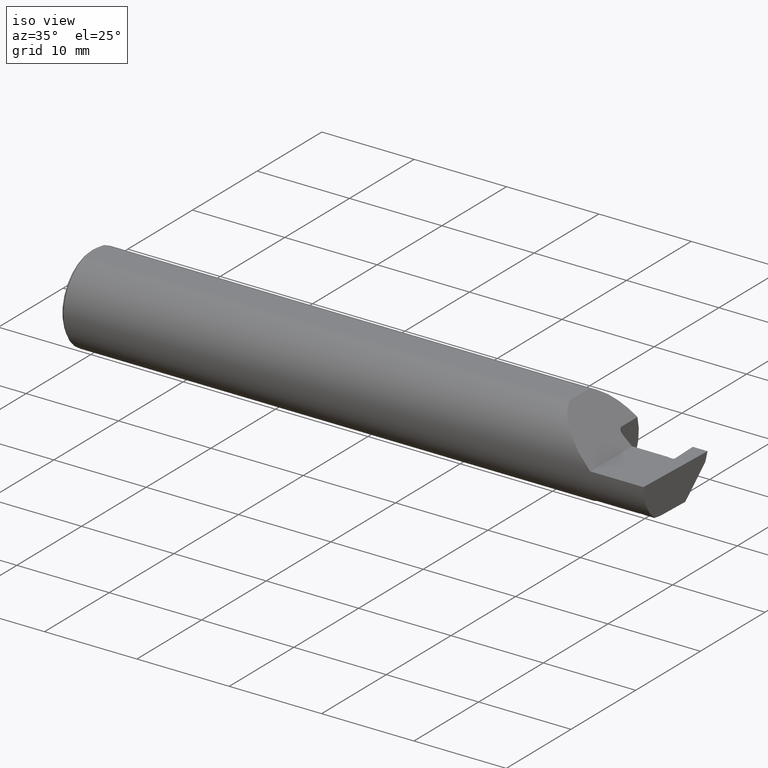
[diagram: clean part render]
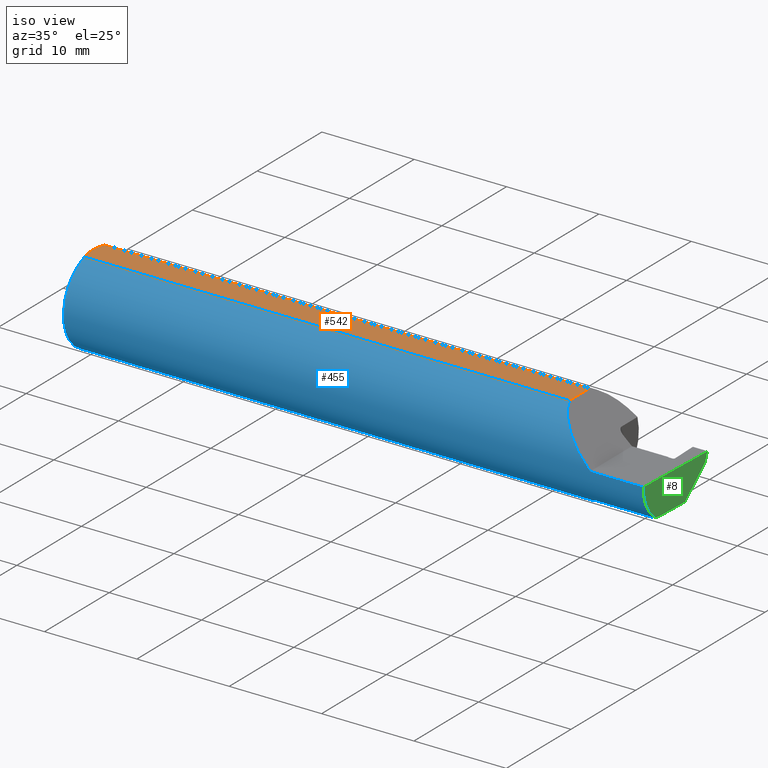
[diagram: same view with three faces highlighted in distinct colors, each labeled with its STEP entity id]
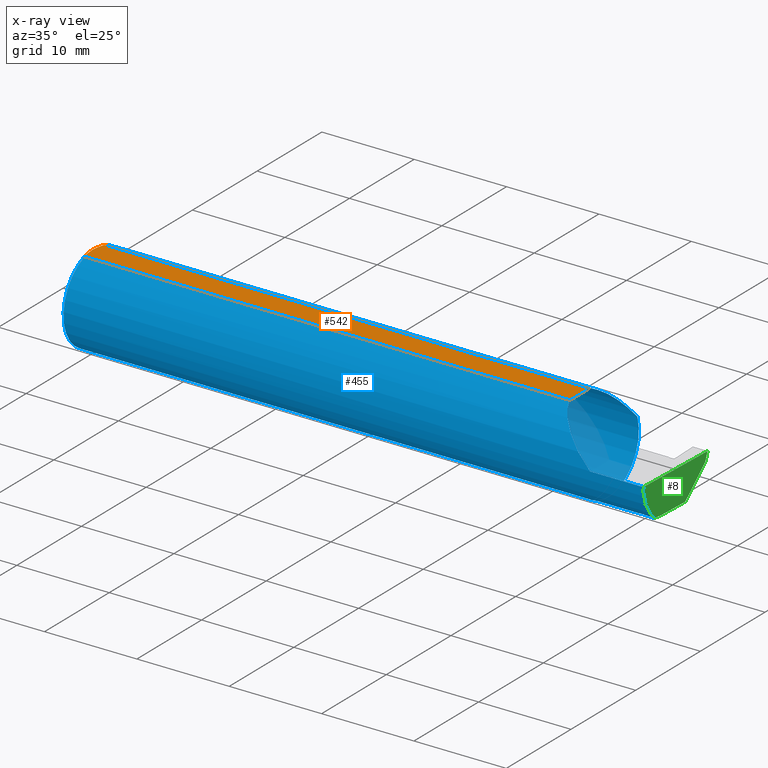
[diagram: x-ray of the same camera — body ghosted, the three highlighted faces saturated]
A machine part, iso view with three faces highlighted in distinct colors.
The next image is the same camera in x-ray (body ghosted, the three faces saturated) — at least one of them is partly hidden behind the body in this view.
Their STEP definitions:

[orange] entity #542 — the highlighted planar face has unit normal (0, -0, 1).
#26 = CARTESIAN_POINT ( 'NONE',  ( 0.004999999999999835305, 2.941982542510190671E-17, 0.1773499999999999799 ) ) ;
#33 = VECTOR ( 'NONE', #346, 39.37007874015748143 ) ;
#48 = B_SPLINE_CURVE_WITH_KNOTS ( 'NONE', 3,
 ( #358, #61, #730, #502, #442, #778 ),
 .UNSPECIFIED., .F., .F.,
 ( 4, 2, 4 ),
 ( 0.004207325536406422359, 0.004979129323161655095, 0.005750933109916887831 ),
 .UNSPECIFIED. ) ;
#59 = CARTESIAN_POINT ( 'NONE',  ( 2.500000000000000000, -0.1873500000000000165, 0.1773499999999999799 ) ) ;
#61 = CARTESIAN_POINT ( 'NONE',  ( 0.01185291896084217714, 0.05062716160312498437, 0.1773499999999999521 ) ) ;
#81 = VERTEX_POINT ( 'NONE', #689 ) ;
#104 = CARTESIAN_POINT ( 'NONE',  ( 0.005896899252109314912, -0.02043863390046160924, 0.1773500000000000354 ) ) ;
#106 = CARTESIAN_POINT ( 'NONE',  ( 0.000000000000000000, 0.06039039658753697637, 0.1773499999999999799 ) ) ;
#124 = CARTESIAN_POINT ( 'NONE',  ( 0.01499999999999756042, 0.06039039658754215278, 0.1773499999999999799 ) ) ;
#134 = B_SPLINE_CURVE_WITH_KNOTS ( 'NONE', 3,
 ( #26, #549, #104, #474, #624, #256 ),
 .UNSPECIFIED., .F., .F.,
 ( 4, 2, 4 ),
 ( 0.005750933109916887831, 0.006521788775031543001, 0.007292644440146199038 ),
 .UNSPECIFIED. ) ;
#141 = VERTEX_POINT ( 'NONE', #124 ) ;
#186 = LINE ( 'NONE', #106, #33 ) ;
#208 = CARTESIAN_POINT ( 'NONE',  ( 0.000000000000000000, -0.06039039658753697637, 0.1773499999999999799 ) ) ;
#212 = VERTEX_POINT ( 'NONE', #725 ) ;
#234 = ORIENTED_EDGE ( 'NONE', *, *, #275, .T. ) ;
#236 = EDGE_CURVE ( 'NONE', #212, #697, #715, .T. ) ;
#256 = CARTESIAN_POINT ( 'NONE',  ( 0.01499999999999999944, -0.06039039658753697637, 0.1773499999999999799 ) ) ;
#275 = EDGE_CURVE ( 'NONE', #141, #608, #48, .T. ) ;
#286 = CARTESIAN_POINT ( 'NONE',  ( 0.004999999999999835305, 2.941982542510190671E-17, 0.1773499999999999799 ) ) ;
#346 = DIRECTION ( 'NONE',  ( -1.000000000000000000, -0.000000000000000000, -0.000000000000000000 ) ) ;
#355 = DIRECTION ( 'NONE',  ( 1.000000000000000000, 0.000000000000000000, 0.000000000000000000 ) ) ;
#358 = CARTESIAN_POINT ( 'NONE',  ( 0.01499999999999756042, 0.06039039658754215278, 0.1773499999999999799 ) ) ;
#378 = EDGE_CURVE ( 'NONE', #81, #141, #186, .T. ) ;
#408 = VECTOR ( 'NONE', #355, 39.37007874015748143 ) ;
#442 = CARTESIAN_POINT ( 'NONE',  ( 0.004999999999999839642, 0.01027925662263861305, 0.1773499999999999799 ) ) ;
#447 = ORIENTED_EDGE ( 'NONE', *, *, #236, .T. ) ;
#474 = CARTESIAN_POINT ( 'NONE',  ( 0.009318557230853204490, -0.04061090184993776386, 0.1773499999999999799 ) ) ;
#502 = CARTESIAN_POINT ( 'NONE',  ( 0.005916828623699125177, 0.02060071390057613763, 0.1773499999999999799 ) ) ;
#505 = DIRECTION ( 'NONE',  ( 0.000000000000000000, -0.000000000000000000, 1.000000000000000000 ) ) ;
#525 = ORIENTED_EDGE ( 'NONE', *, *, #378, .T. ) ;
#542 = ADVANCED_FACE ( 'NONE', ( #852 ), #922, .T. ) ;
#547 = EDGE_LOOP ( 'NONE', ( #801, #525, #234, #901, #447 ) ) ;
#549 = CARTESIAN_POINT ( 'NONE',  ( 0.004999999999999833571, -0.01026662907944655458, 0.1773499999999999521 ) ) ;
#563 = AXIS2_PLACEMENT_3D ( 'NONE', #59, #505, #648 ) ;
#594 = VECTOR ( 'NONE', #927, 39.37007874015748143 ) ;
#602 = LINE ( 'NONE', #728, #594 ) ;
#608 = VERTEX_POINT ( 'NONE', #286 ) ;
#624 = CARTESIAN_POINT ( 'NONE',  ( 0.01186375298701897348, -0.05066077215909271098, 0.1773499999999999799 ) ) ;
#648 = DIRECTION ( 'NONE',  ( 1.000000000000000000, 0.000000000000000000, -0.000000000000000000 ) ) ;
#658 = CARTESIAN_POINT ( 'NONE',  ( 2.082650000000001445, -0.06039039658753699025, 0.1773499999999999799 ) ) ;
#689 = CARTESIAN_POINT ( 'NONE',  ( 2.082650000000001445, 0.06039039658753697637, 0.1773499999999999799 ) ) ;
#697 = VERTEX_POINT ( 'NONE', #658 ) ;
#712 = EDGE_CURVE ( 'NONE', #81, #697, #602, .T. ) ;
#715 = LINE ( 'NONE', #208, #408 ) ;
#725 = CARTESIAN_POINT ( 'NONE',  ( 0.01499999999999999944, -0.06039039658753697637, 0.1773499999999999799 ) ) ;
#728 = CARTESIAN_POINT ( 'NONE',  ( 2.082650000000001445, -0.1873500000000000165, 0.1773499999999999799 ) ) ;
#730 = CARTESIAN_POINT ( 'NONE',  ( 0.009346310357820472939, 0.04072930668827419443, 0.1773500000000000354 ) ) ;
#754 = EDGE_CURVE ( 'NONE', #608, #212, #134, .T. ) ;
#778 = CARTESIAN_POINT ( 'NONE',  ( 0.004999999999999835305, 2.941982542510190671E-17, 0.1773499999999999799 ) ) ;
#801 = ORIENTED_EDGE ( 'NONE', *, *, #712, .F. ) ;
#852 = FACE_OUTER_BOUND ( 'NONE', #547, .T. ) ;
#901 = ORIENTED_EDGE ( 'NONE', *, *, #754, .T. ) ;
#922 = PLANE ( 'NONE',  #563 ) ;
#927 = DIRECTION ( 'NONE',  ( 0.000000000000000000, -1.000000000000000000, 0.000000000000000000 ) ) ;

[blue] entity #455 — the highlighted cylindrical surface (partial cylindrical patch) has radius 4.7587 mm, axis along (-1, -0, -0).
#2 = VERTEX_POINT ( 'NONE', #144 ) ;
#6 = CARTESIAN_POINT ( 'NONE',  ( 2.441381938566095755, -0.1204606180674029081, -0.1434926334387275626 ) ) ;
#12 = CARTESIAN_POINT ( 'NONE',  ( 2.443071615181779066, -0.1190227122283910727, -0.1446875610761318431 ) ) ;
#17 = ORIENTED_EDGE ( 'NONE', *, *, #21, .T. ) ;
#21 = EDGE_CURVE ( 'NONE', #461, #119, #167, .T. ) ;
#32 = CARTESIAN_POINT ( 'NONE',  ( 2.432595539171431565, -0.1205886845300085525, -0.1433820739707263869 ) ) ;
#33 = VECTOR ( 'NONE', #346, 39.37007874015748143 ) ;
#40 = CARTESIAN_POINT ( 'NONE',  ( 2.422025638076214182, -0.1199515203394592167, -0.1439154448565278244 ) ) ;
#43 = DIRECTION ( 'NONE',  ( -1.000000000000000000, -0.000000000000000000, -0.000000000000000000 ) ) ;
#45 = B_SPLINE_CURVE_WITH_KNOTS ( 'NONE', 3,
 ( #626, #895, #261, #623, #32, #404, #46, #560, #695, #40 ),
 .UNSPECIFIED., .F., .F.,
 ( 4, 3, 3, 4 ),
 ( 0.000000000000000000, 0.0001077215152118620318, 0.0002693038001888985200, 0.0004308860970011368940 ),
 .UNSPECIFIED. ) ;
#46 = CARTESIAN_POINT ( 'NONE',  ( 2.428367553115089894, -0.1203343260142653581, -0.1435955169310396684 ) ) ;
#70 = CARTESIAN_POINT ( 'NONE',  ( 2.420647357912071751, -0.1172600179964006784, -0.1461167706989302817 ) ) ;
#73 = CARTESIAN_POINT ( 'NONE',  ( 2.444191707502842092, -0.1172600179964006784, -0.1461167706989303094 ) ) ;
#80 = AXIS2_PLACEMENT_3D ( 'NONE', #414, #339, #830 ) ;
#81 = VERTEX_POINT ( 'NONE', #689 ) ;
#91 = VERTEX_POINT ( 'NONE', #189 ) ;
#93 = EDGE_CURVE ( 'NONE', #461, #344, #111, .T. ) ;
#101 = VERTEX_POINT ( 'NONE', #556 ) ;
#103 = EDGE_CURVE ( 'NONE', #141, #700, #283, .T. ) ;
#106 = CARTESIAN_POINT ( 'NONE',  ( 0.000000000000000000, 0.06039039658753697637, 0.1773499999999999799 ) ) ;
#110 = CARTESIAN_POINT ( 'NONE',  ( 2.260000000000000231, -0.1873499999999999888, 2.939152317953647352E-17 ) ) ;
#111 = LINE ( 'NONE', #834, #577 ) ;
#114 = DIRECTION ( 'NONE',  ( 0.000000000000000000, 0.000000000000000000, 1.000000000000000000 ) ) ;
#119 = VERTEX_POINT ( 'NONE', #759 ) ;
#124 = CARTESIAN_POINT ( 'NONE',  ( 0.01499999999999756042, 0.06039039658754215278, 0.1773499999999999799 ) ) ;
#129 = DIRECTION ( 'NONE',  ( 1.000000000000000000, 0.000000000000000000, 0.000000000000000000 ) ) ;
#132 = CARTESIAN_POINT ( 'NONE',  ( 2.213439486659306787, -0.1064616213911158960, -0.1542305641651499359 ) ) ;
#136 = ORIENTED_EDGE ( 'NONE', *, *, #93, .F. ) ;
#141 = VERTEX_POINT ( 'NONE', #124 ) ;
#144 = CARTESIAN_POINT ( 'NONE',  ( 2.205000000000000071, -0.06851976604679065053, -0.1743704796142198643 ) ) ;
#154 = ORIENTED_EDGE ( 'NONE', *, *, #204, .F. ) ;
#162 = EDGE_CURVE ( 'NONE', #700, #212, #775, .T. ) ;
#164 = EDGE_CURVE ( 'NONE', #101, #251, #45, .T. ) ;
#167 =( BOUNDED_CURVE ( )  B_SPLINE_CURVE ( 3, ( #227, #727, #515, #540 ),
 .UNSPECIFIED., .F., .F. ) 
 B_SPLINE_CURVE_WITH_KNOTS ( ( 4, 4 ),
 ( 6.032366188922103412, 6.926893589830550368 ),
 .UNSPECIFIED. ) 
 CURVE ( )  GEOMETRIC_REPRESENTATION_ITEM ( )  RATIONAL_B_SPLINE_CURVE ( ( 1.000000000000000000, 0.9344226172588803170, 0.9344226172588803170, 1.000000000000000000 ) ) 
 REPRESENTATION_ITEM ( '' )  );
#186 = LINE ( 'NONE', #106, #33 ) ;
#189 = CARTESIAN_POINT ( 'NONE',  ( 2.260000000000000231, -0.1873499999999999888, 2.939152317953647352E-17 ) ) ;
#192 = EDGE_CURVE ( 'NONE', #119, #91, #646, .T. ) ;
#203 = CARTESIAN_POINT ( 'NONE',  ( 2.205000000000000071, -0.06851976604679065053, -0.1743704796142198643 ) ) ;
#204 = EDGE_CURVE ( 'NONE', #887, #2, #584, .T. ) ;
#208 = CARTESIAN_POINT ( 'NONE',  ( 0.000000000000000000, -0.06039039658753697637, 0.1773499999999999799 ) ) ;
#212 = VERTEX_POINT ( 'NONE', #725 ) ;
#221 = CIRCLE ( 'NONE', #792, 0.1873499999999999888 ) ;
#225 = CARTESIAN_POINT ( 'NONE',  ( 2.207960551809339922, -0.09317341542745748162, -0.1626248379125196930 ) ) ;
#227 = CARTESIAN_POINT ( 'NONE',  ( 2.485628535317038867, -0.1172600179964007061, -0.1461167706989303094 ) ) ;
#236 = EDGE_CURVE ( 'NONE', #212, #697, #715, .T. ) ;
#241 = ORIENTED_EDGE ( 'NONE', *, *, #696, .F. ) ;
#248 = ORIENTED_EDGE ( 'NONE', *, *, #236, .F. ) ;
#251 = VERTEX_POINT ( 'NONE', #588 ) ;
#261 = CARTESIAN_POINT ( 'NONE',  ( 2.436118896717770710, -0.1207999448597607134, -0.1432040782660236045 ) ) ;
#269 = VERTEX_POINT ( 'NONE', #70 ) ;
#282 = EDGE_CURVE ( 'NONE', #2, #349, #221, .T. ) ;
#283 = CIRCLE ( 'NONE', #736, 0.1873499999999999888 ) ;
#314 = ORIENTED_EDGE ( 'NONE', *, *, #162, .F. ) ;
#317 = CARTESIAN_POINT ( 'NONE',  ( 0.01499999999999999944, 0.000000000000000000, -0.1873499999999999888 ) ) ;
#321 = B_SPLINE_CURVE_WITH_KNOTS ( 'NONE', 3,
 ( #562, #836, #491, #773 ),
 .UNSPECIFIED., .F., .F.,
 ( 4, 4 ),
 ( 0.000000000000000000, 9.500012044866641334E-05 ),
 .UNSPECIFIED. ) ;
#339 = DIRECTION ( 'NONE',  ( -1.000000000000000000, -0.000000000000000000, -0.000000000000000000 ) ) ;
#342 = ORIENTED_EDGE ( 'NONE', *, *, #282, .F. ) ;
#344 = VERTEX_POINT ( 'NONE', #374 ) ;
#346 = DIRECTION ( 'NONE',  ( -1.000000000000000000, -0.000000000000000000, -0.000000000000000000 ) ) ;
#349 = VERTEX_POINT ( 'NONE', #660 ) ;
#355 = DIRECTION ( 'NONE',  ( 1.000000000000000000, 0.000000000000000000, 0.000000000000000000 ) ) ;
#363 = B_SPLINE_CURVE_WITH_KNOTS ( 'NONE', 3,
 ( #73, #597, #12, #6, #875, #742 ),
 .UNSPECIFIED., .F., .F.,
 ( 4, 2, 4 ),
 ( 0.0002908299335268883226, 0.0003847768622424009360, 0.0004787237909579135494 ),
 .UNSPECIFIED. ) ;
#374 = CARTESIAN_POINT ( 'NONE',  ( 2.444191707502842092, -0.1172600179964006784, -0.1461167706989303094 ) ) ;
#378 = EDGE_CURVE ( 'NONE', #81, #141, #186, .T. ) ;
#380 = ORIENTED_EDGE ( 'NONE', *, *, #378, .F. ) ;
#386 = EDGE_CURVE ( 'NONE', #91, #697, #837, .T. ) ;
#392 =( BOUNDED_CURVE ( )  B_SPLINE_CURVE ( 3, ( #397, #627, #401, #554 ),
 .UNSPECIFIED., .F., .T. ) 
 B_SPLINE_CURVE_WITH_KNOTS ( ( 4, 4 ),
 ( 0.3282003792178449508, 1.272838961666674873 ),
 .UNSPECIFIED. ) 
 CURVE ( )  GEOMETRIC_REPRESENTATION_ITEM ( )  RATIONAL_B_SPLINE_CURVE ( ( 1.000000000000000000, 0.9270103440186696631, 0.9270103440186696631, 1.000000000000000000 ) ) 
 REPRESENTATION_ITEM ( '' )  );
#397 = CARTESIAN_POINT ( 'NONE',  ( 2.082650000000001445, 0.06039039658753697637, 0.1773499999999999799 ) ) ;
#401 = CARTESIAN_POINT ( 'NONE',  ( 2.146403178835508463, 0.1610999512718552795, 0.1135968211644918235 ) ) ;
#403 = CARTESIAN_POINT ( 'NONE',  ( 2.082650000000001445, -0.06039039658753699025, 0.1773499999999999799 ) ) ;
#404 = CARTESIAN_POINT ( 'NONE',  ( 2.430481538961044574, -0.1204616461840352093, -0.1434888214913440374 ) ) ;
#407 = CARTESIAN_POINT ( 'NONE',  ( 2.109420298020488804, -0.1390074056189584684, 0.1505797019795120650 ) ) ;
#408 = VECTOR ( 'NONE', #355, 39.37007874015748143 ) ;
#413 = ORIENTED_EDGE ( 'NONE', *, *, #755, .T. ) ;
#414 = CARTESIAN_POINT ( 'NONE',  ( 0.01499999999999999944, 0.000000000000000000, 0.000000000000000000 ) ) ;
#452 = ORIENTED_EDGE ( 'NONE', *, *, #683, .F. ) ;
#455 = ADVANCED_FACE ( 'NONE', ( #833 ), #483, .T. ) ;
#461 = VERTEX_POINT ( 'NONE', #891 ) ;
#477 = CARTESIAN_POINT ( 'NONE',  ( 0.01499999999999999944, 0.000000000000000000, 0.000000000000000000 ) ) ;
#480 = CARTESIAN_POINT ( 'NONE',  ( 2.176950117609040891, -0.1873500000000001275, 0.08304988239095997815 ) ) ;
#483 = CYLINDRICAL_SURFACE ( 'NONE', #661, 0.1873499999999999888 ) ;
#491 = CARTESIAN_POINT ( 'NONE',  ( 2.421107959158273815, -0.1181635923225869828, -0.1453916442042585966 ) ) ;
#494 = EDGE_CURVE ( 'NONE', #251, #269, #321, .T. ) ;
#497 = CARTESIAN_POINT ( 'NONE',  ( 2.205000000000000071, -0.07368234487347197215, -0.1723418180300748392 ) ) ;
#507 = CARTESIAN_POINT ( 'NONE',  ( 2.220028532764138252, -0.1137241120808236139, -0.1488947809299403513 ) ) ;
#515 = CARTESIAN_POINT ( 'NONE',  ( 2.485494735025390867, -0.1873500000000000443, -0.05781030015605120170 ) ) ;
#518 = ORIENTED_EDGE ( 'NONE', *, *, #192, .T. ) ;
#520 = CARTESIAN_POINT ( 'NONE',  ( 2.218203859946834111, -0.1120371980050639121, -0.1501764597936558754 ) ) ;
#524 = CARTESIAN_POINT ( 'NONE',  ( 2.330999999999999961, -0.1172600179964007061, -0.1461167706989303094 ) ) ;
#540 = CARTESIAN_POINT ( 'NONE',  ( 2.487009473749072441, -0.1873499999999999055, 0.000000000000000000 ) ) ;
#554 = CARTESIAN_POINT ( 'NONE',  ( 2.205000000000000071, 0.1790950097015547027, 0.05500000000000044437 ) ) ;
#556 = CARTESIAN_POINT ( 'NONE',  ( 2.438937601851397297, -0.1209685768375081683, -0.1430616158090907419 ) ) ;
#560 = CARTESIAN_POINT ( 'NONE',  ( 2.426253567114300846, -0.1202070058351702025, -0.1437022123785499372 ) ) ;
#562 = CARTESIAN_POINT ( 'NONE',  ( 2.422025638076214182, -0.1199515203394592167, -0.1439154448565278244 ) ) ;
#577 = VECTOR ( 'NONE', #706, 39.37007874015748143 ) ;
#578 = CARTESIAN_POINT ( 'NONE',  ( 2.224511795768554290, -0.1163687266324235081, -0.1468371510166789073 ) ) ;
#583 = CARTESIAN_POINT ( 'NONE',  ( 3.749399456654646757E-32, -0.1873499999999999888, 3.061616997868384127E-16 ) ) ;
#584 = B_SPLINE_CURVE_WITH_KNOTS ( 'NONE', 3,
 ( #641, #650, #578, #507, #520, #132, #850, #225, #912, #782, #497, #203 ),
 .UNSPECIFIED., .F., .F.,
 ( 4, 2, 2, 2, 2, 4 ),
 ( 1.967976973658592312E-07, 0.0002120314145722268116, 0.0004238660314470877287, 0.0008475352651967987209, 0.001271204498946509713, 0.001694873732696220705 ),
 .UNSPECIFIED. ) ;
#587 = ORIENTED_EDGE ( 'NONE', *, *, #386, .T. ) ;
#588 = CARTESIAN_POINT ( 'NONE',  ( 2.422025638076214182, -0.1199515203394592167, -0.1439154448565278244 ) ) ;
#593 = DIRECTION ( 'NONE',  ( 0.000000000000000000, 0.000000000000000000, -1.000000000000000000 ) ) ;
#597 = CARTESIAN_POINT ( 'NONE',  ( 2.443688705465294486, -0.1181608300328332722, -0.1453938609665416659 ) ) ;
#614 = LINE ( 'NONE', #524, #902 ) ;
#623 = CARTESIAN_POINT ( 'NONE',  ( 2.434709553758566791, -0.1207154407314173922, -0.1432752765449073484 ) ) ;
#626 = CARTESIAN_POINT ( 'NONE',  ( 2.438937601851397297, -0.1209685768375081683, -0.1430616158090907419 ) ) ;
#627 = CARTESIAN_POINT ( 'NONE',  ( 2.102408703912463483, 0.1184162804513036737, 0.1575912960875374691 ) ) ;
#635 = VECTOR ( 'NONE', #920, 39.37007874015748143 ) ;
#641 = CARTESIAN_POINT ( 'NONE',  ( 2.229999999999999982, -0.1172600179964006922, -0.1461167706989303094 ) ) ;
#646 = LINE ( 'NONE', #583, #635 ) ;
#650 = CARTESIAN_POINT ( 'NONE',  ( 2.227174967710399134, -0.1172600179964006784, -0.1461167706989303650 ) ) ;
#658 = CARTESIAN_POINT ( 'NONE',  ( 2.082650000000001445, -0.06039039658753699025, 0.1773499999999999799 ) ) ;
#660 = CARTESIAN_POINT ( 'NONE',  ( 2.205000000000000071, 0.1790950097015547027, 0.05500000000000044437 ) ) ;
#661 = AXIS2_PLACEMENT_3D ( 'NONE', #766, #43, #114 ) ;
#683 = EDGE_CURVE ( 'NONE', #269, #887, #614, .T. ) ;
#689 = CARTESIAN_POINT ( 'NONE',  ( 2.082650000000001445, 0.06039039658753697637, 0.1773499999999999799 ) ) ;
#695 = CARTESIAN_POINT ( 'NONE',  ( 2.424139595439235073, -0.1200794038298985400, -0.1438088557470698359 ) ) ;
#696 = EDGE_CURVE ( 'NONE', #344, #101, #363, .T. ) ;
#697 = VERTEX_POINT ( 'NONE', #658 ) ;
#700 = VERTEX_POINT ( 'NONE', #317 ) ;
#706 = DIRECTION ( 'NONE',  ( -1.000000000000000000, -0.000000000000000000, -0.000000000000000000 ) ) ;
#715 = LINE ( 'NONE', #208, #408 ) ;
#725 = CARTESIAN_POINT ( 'NONE',  ( 0.01499999999999999944, -0.06039039658753697637, 0.1773499999999999799 ) ) ;
#727 = CARTESIAN_POINT ( 'NONE',  ( 2.485002117657001186, -0.1623470442677541481, -0.1099340280425338545 ) ) ;
#736 = AXIS2_PLACEMENT_3D ( 'NONE', #477, #892, #900 ) ;
#742 = CARTESIAN_POINT ( 'NONE',  ( 2.438937601851397297, -0.1209685768375081683, -0.1430616158090907419 ) ) ;
#752 = ORIENTED_EDGE ( 'NONE', *, *, #164, .F. ) ;
#755 = EDGE_CURVE ( 'NONE', #81, #349, #392, .T. ) ;
#759 = CARTESIAN_POINT ( 'NONE',  ( 2.487009473749072441, -0.1873499999999999055, 0.000000000000000000 ) ) ;
#766 = CARTESIAN_POINT ( 'NONE',  ( 0.000000000000000000, 0.000000000000000000, 0.000000000000000000 ) ) ;
#773 = CARTESIAN_POINT ( 'NONE',  ( 2.420647357912071751, -0.1172600179964006784, -0.1461167706989302817 ) ) ;
#775 = CIRCLE ( 'NONE', #80, 0.1873499999999999888 ) ;
#782 = CARTESIAN_POINT ( 'NONE',  ( 2.205358271039144391, -0.07873626113568087115, -0.1700887912276897174 ) ) ;
#792 = AXIS2_PLACEMENT_3D ( 'NONE', #797, #129, #593 ) ;
#797 = CARTESIAN_POINT ( 'NONE',  ( 2.205000000000000071, 0.000000000000000000, 0.000000000000000000 ) ) ;
#830 = DIRECTION ( 'NONE',  ( 0.000000000000000000, 0.000000000000000000, 1.000000000000000000 ) ) ;
#833 = FACE_OUTER_BOUND ( 'NONE', #923, .T. ) ;
#834 = CARTESIAN_POINT ( 'NONE',  ( 2.330999999999999961, -0.1172600179964007061, -0.1461167706989303094 ) ) ;
#836 = CARTESIAN_POINT ( 'NONE',  ( 2.421567443531847719, -0.1190608260629894555, -0.1446578261396952447 ) ) ;
#837 =( BOUNDED_CURVE ( )  B_SPLINE_CURVE ( 3, ( #110, #480, #407, #403 ),
 .UNSPECIFIED., .F., .F. ) 
 B_SPLINE_CURVE_WITH_KNOTS ( ( 4, 4 ),
 ( 4.712388980384688786, 5.954984927961740837 ),
 .UNSPECIFIED. ) 
 CURVE ( )  GEOMETRIC_REPRESENTATION_ITEM ( )  RATIONAL_B_SPLINE_CURVE ( ( 1.000000000000000000, 0.8754157352537689230, 0.8754157352537689230, 1.000000000000000000 ) ) 
 REPRESENTATION_ITEM ( '' )  );
#850 = CARTESIAN_POINT ( 'NONE',  ( 2.211304331342287988, -0.1022198306720690925, -0.1570962426853818039 ) ) ;
#861 = ORIENTED_EDGE ( 'NONE', *, *, #494, .F. ) ;
#875 = CARTESIAN_POINT ( 'NONE',  ( 2.440211079559213569, -0.1210447068979502161, -0.1429972425317855012 ) ) ;
#880 = DIRECTION ( 'NONE',  ( -1.000000000000000000, -0.000000000000000000, -0.000000000000000000 ) ) ;
#887 = VERTEX_POINT ( 'NONE', #917 ) ;
#891 = CARTESIAN_POINT ( 'NONE',  ( 2.485628535317038867, -0.1172600179964007061, -0.1461167706989303094 ) ) ;
#892 = DIRECTION ( 'NONE',  ( -1.000000000000000000, -0.000000000000000000, -0.000000000000000000 ) ) ;
#895 = CARTESIAN_POINT ( 'NONE',  ( 2.437528246080943095, -0.1208843235918136555, -0.1431328578062397439 ) ) ;
#900 = DIRECTION ( 'NONE',  ( 0.000000000000000000, 0.000000000000000000, 1.000000000000000000 ) ) ;
#902 = VECTOR ( 'NONE', #880, 39.37007874015748143 ) ;
#912 = CARTESIAN_POINT ( 'NONE',  ( 2.206843912362377758, -0.08846956905169091334, -0.1652353808078971809 ) ) ;
#917 = CARTESIAN_POINT ( 'NONE',  ( 2.229999999999999982, -0.1172600179964006922, -0.1461167706989303094 ) ) ;
#919 = ORIENTED_EDGE ( 'NONE', *, *, #103, .F. ) ;
#920 = DIRECTION ( 'NONE',  ( -1.000000000000000000, -0.000000000000000000, -0.000000000000000000 ) ) ;
#923 = EDGE_LOOP ( 'NONE', ( #136, #17, #518, #587, #248, #314, #919, #380, #413, #342, #154, #452, #861, #752, #241 ) ) ;

[green] entity #8 — the highlighted planar face has unit normal (-0.999, 0.0349, 0.0262).
#8 = ADVANCED_FACE ( 'NONE', ( #376 ), #803, .F. ) ;
#13 = ORIENTED_EDGE ( 'NONE', *, *, #557, .F. ) ;
#21 = EDGE_CURVE ( 'NONE', #461, #119, #167, .T. ) ;
#29 = CARTESIAN_POINT ( 'NONE',  ( 2.498389373204160435, 0.1692961418071499968, -0.04100690973599954714 ) ) ;
#37 = LINE ( 'NONE', #267, #47 ) ;
#47 = VECTOR ( 'NONE', #565, 39.37007874015748143 ) ;
#56 = VERTEX_POINT ( 'NONE', #237 ) ;
#100 = DIRECTION ( 'NONE',  ( -0.03489949670249478664, -0.9993908270190959842, 0.000000000000000000 ) ) ;
#108 = EDGE_CURVE ( 'NONE', #461, #56, #890, .T. ) ;
#119 = VERTEX_POINT ( 'NONE', #759 ) ;
#130 = EDGE_CURVE ( 'NONE', #199, #56, #37, .T. ) ;
#167 =( BOUNDED_CURVE ( )  B_SPLINE_CURVE ( 3, ( #227, #727, #515, #540 ),
 .UNSPECIFIED., .F., .F. ) 
 B_SPLINE_CURVE_WITH_KNOTS ( ( 4, 4 ),
 ( 6.032366188922103412, 6.926893589830550368 ),
 .UNSPECIFIED. ) 
 CURVE ( )  GEOMETRIC_REPRESENTATION_ITEM ( )  RATIONAL_B_SPLINE_CURVE ( ( 1.000000000000000000, 0.9344226172588803170, 0.9344226172588803170, 1.000000000000000000 ) ) 
 REPRESENTATION_ITEM ( '' )  );
#177 = VECTOR ( 'NONE', #751, 39.37007874015748143 ) ;
#199 = VERTEX_POINT ( 'NONE', #862 ) ;
#227 = CARTESIAN_POINT ( 'NONE',  ( 2.485628535317038867, -0.1172600179964007061, -0.1461167706989303094 ) ) ;
#237 = CARTESIAN_POINT ( 'NONE',  ( 2.486710951318955587, -0.08334999999999995191, -0.1499999999999999944 ) ) ;
#266 = ORIENTED_EDGE ( 'NONE', *, *, #130, .F. ) ;
#267 = CARTESIAN_POINT ( 'NONE',  ( 2.493549313964080305, 0.1124750847462631514, -0.1499999999999999944 ) ) ;
#299 = ORIENTED_EDGE ( 'NONE', *, *, #108, .T. ) ;
#301 = VECTOR ( 'NONE', #100, 39.37007874015748854 ) ;
#333 = AXIS2_PLACEMENT_3D ( 'NONE', #610, #522, #794 ) ;
#357 = LINE ( 'NONE', #860, #375 ) ;
#375 = VECTOR ( 'NONE', #429, 39.37007874015748143 ) ;
#376 = FACE_OUTER_BOUND ( 'NONE', #899, .T. ) ;
#406 = CARTESIAN_POINT ( 'NONE',  ( 2.500000000000000000, 0.1846500000000000363, 0.000000000000000000 ) ) ;
#410 = CARTESIAN_POINT ( 'NONE',  ( 2.485949549028435790, -0.1061291577212409298, -0.1486999626928446061 ) ) ;
#429 = DIRECTION ( 'NONE',  ( -0.03568783471266506746, -0.3088201463263676727, -0.9504506802967118695 ) ) ;
#434 = ORIENTED_EDGE ( 'NONE', *, *, #21, .F. ) ;
#461 = VERTEX_POINT ( 'NONE', #891 ) ;
#465 = VERTEX_POINT ( 'NONE', #569 ) ;
#515 = CARTESIAN_POINT ( 'NONE',  ( 2.485494735025390867, -0.1873500000000000443, -0.05781030015605120170 ) ) ;
#522 = DIRECTION ( 'NONE',  ( -0.9990483607430193924, 0.03488753751660920999, 0.02617694830787320806 ) ) ;
#540 = CARTESIAN_POINT ( 'NONE',  ( 2.487009473749072441, -0.1873499999999999055, 0.000000000000000000 ) ) ;
#557 = EDGE_CURVE ( 'NONE', #857, #465, #357, .T. ) ;
#565 = DIRECTION ( 'NONE',  ( -0.03489949670249477970, -0.9993908270190959842, 0.000000000000000000 ) ) ;
#569 = CARTESIAN_POINT ( 'NONE',  ( 2.498573163503173156, 0.1723030515431495657, -0.03799999999999999212 ) ) ;
#610 = CARTESIAN_POINT ( 'NONE',  ( 2.500000000000000000, 0.1846500000000000363, 0.000000000000000000 ) ) ;
#615 = ORIENTED_EDGE ( 'NONE', *, *, #763, .F. ) ;
#636 = CARTESIAN_POINT ( 'NONE',  ( 2.486311922989707490, -0.09477667630339421667, -0.1499999999999999944 ) ) ;
#638 = CARTESIAN_POINT ( 'NONE',  ( 2.485628535317038867, -0.1172600179964007061, -0.1461167706989303094 ) ) ;
#684 = LINE ( 'NONE', #29, #177 ) ;
#727 = CARTESIAN_POINT ( 'NONE',  ( 2.485002117657001186, -0.1623470442677541481, -0.1099340280425338545 ) ) ;
#751 = DIRECTION ( 'NONE',  ( -0.04317993108638582683, -0.7064472710512009757, -0.7064472710511987552 ) ) ;
#759 = CARTESIAN_POINT ( 'NONE',  ( 2.487009473749072441, -0.1873499999999999055, 0.000000000000000000 ) ) ;
#763 = EDGE_CURVE ( 'NONE', #465, #199, #684, .T. ) ;
#767 = CARTESIAN_POINT ( 'NONE',  ( 2.486710951318955587, -0.08334999999999995191, -0.1499999999999999944 ) ) ;
#794 = DIRECTION ( 'NONE',  ( -0.03489949670249477970, -0.9993908270190959842, 0.000000000000000000 ) ) ;
#803 = PLANE ( 'NONE',  #333 ) ;
#805 = ORIENTED_EDGE ( 'NONE', *, *, #840, .T. ) ;
#824 = LINE ( 'NONE', #406, #301 ) ;
#832 = CARTESIAN_POINT ( 'NONE',  ( 2.500000000000000000, 0.1846500000000000363, 0.000000000000000000 ) ) ;
#840 = EDGE_CURVE ( 'NONE', #857, #119, #824, .T. ) ;
#857 = VERTEX_POINT ( 'NONE', #832 ) ;
#860 = CARTESIAN_POINT ( 'NONE',  ( 2.499872637845352408, 0.1835478877661963770, -0.003391952678096913417 ) ) ;
#862 = CARTESIAN_POINT ( 'NONE',  ( 2.491727426418679059, 0.06030305154314919563, -0.1499999999999999944 ) ) ;
#890 =( BOUNDED_CURVE ( )  B_SPLINE_CURVE ( 3, ( #638, #410, #636, #767 ),
 .UNSPECIFIED., .F., .F. ) 
 B_SPLINE_CURVE_WITH_KNOTS ( ( 4, 4 ),
 ( 0.6990500090944880007, 0.9270880441439324215 ),
 .UNSPECIFIED. ) 
 CURVE ( )  GEOMETRIC_REPRESENTATION_ITEM ( )  RATIONAL_B_SPLINE_CURVE ( ( 1.000000000000000000, 0.9956712472009929815, 0.9956712472009929815, 1.000000000000000000 ) ) 
 REPRESENTATION_ITEM ( '' )  );
#891 = CARTESIAN_POINT ( 'NONE',  ( 2.485628535317038867, -0.1172600179964007061, -0.1461167706989303094 ) ) ;
#899 = EDGE_LOOP ( 'NONE', ( #299, #266, #615, #13, #805, #434 ) ) ;